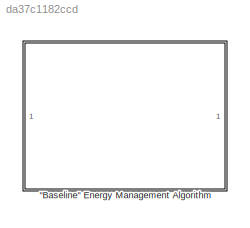
MODEL slx_da37c1182ccd
KIND model
CONFIG AbsTol = auto
CONFIG EnableMultiTasking = off
CONFIG FixedStep = auto
CONFIG MaxStep = auto
CONFIG MinStep = auto
CONFIG RelTol = 1e-3
CONFIG SampleTimeConstraint = Unconstrained
CONFIG SolverName = VariableStepAuto
CONFIG StartTime = 0.0
CONFIG StopTime = 10.0
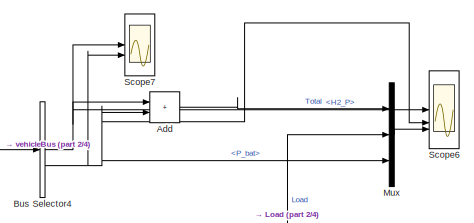
[diagram: "Baseline" Energy Management Algorithm - part 1/4, top left region]
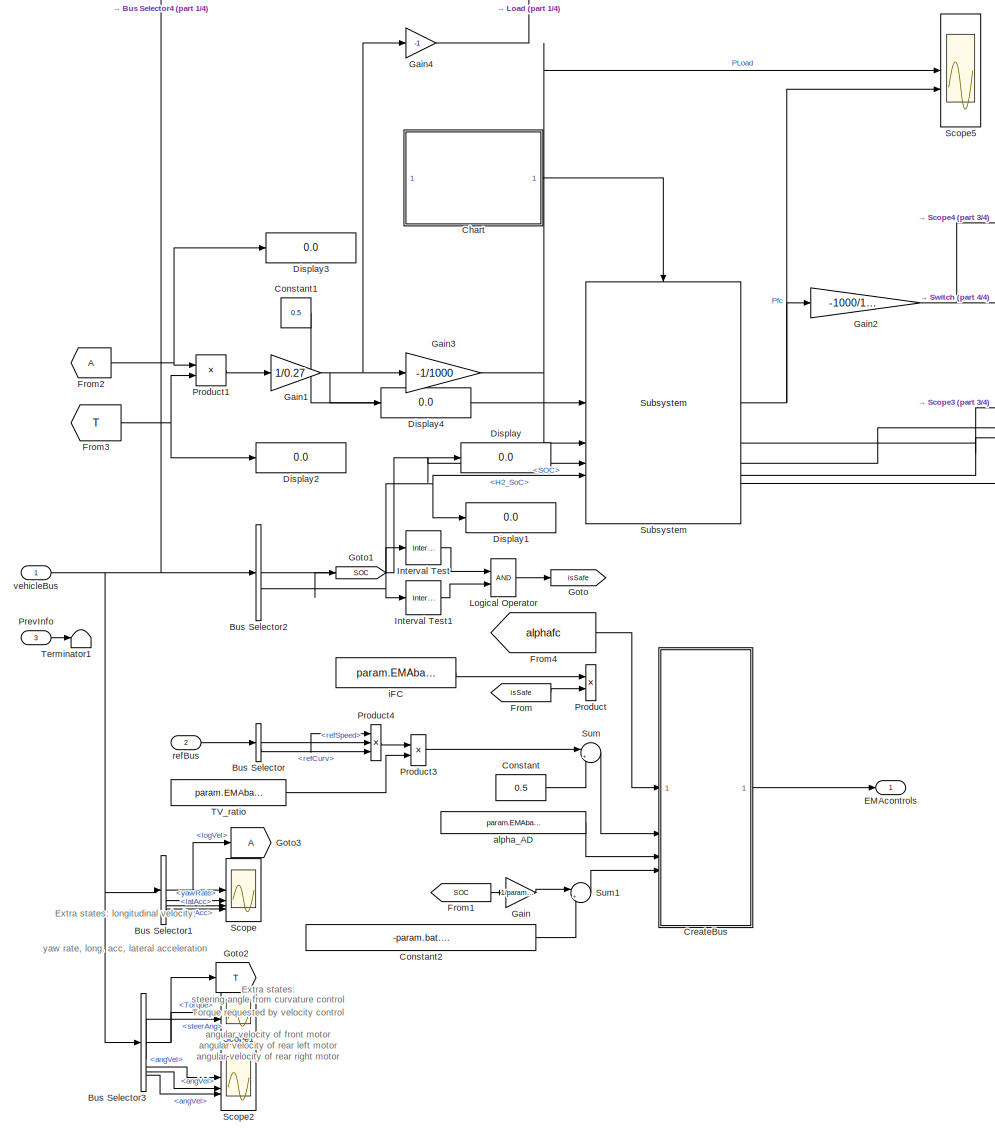
[diagram: "Baseline" Energy Management Algorithm - part 2/4, left side, full height]
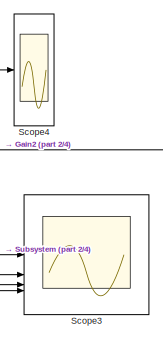
[diagram: "Baseline" Energy Management Algorithm - part 3/4, middle right region]
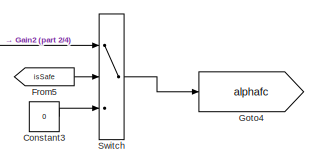
[diagram: "Baseline" Energy Management Algorithm - part 4/4, middle right region]
BLOCK [SubSystem] "Baseline" Energy Management Algorithm
BLOCK [Sum] "Baseline" Energy Management Algorithm/Add
  IconShape = rectangular
BLOCK [BusSelector] "Baseline" Energy Management Algorithm/Bus Selector
  OutputSignals = refSpeed,refCurv
BLOCK [BusSelector] "Baseline" Energy Management Algorithm/Bus Selector1
  OutputSignals = chassisBus.logVel,chassisBus.yawRate,chassisBus.logAcc,chassisBus.latAcc
BLOCK [BusSelector] "Baseline" Energy Management Algorithm/Bus Selector2
  OutputSignals = batteryBus.SOC,rexBus.H2_SoC
BLOCK [BusSelector] "Baseline" Energy Management Algorithm/Bus Selector3
  OutputSignals = chassisControlBus.Torque,chassisControlBus.steerAng,electricMotorBusFM.angVel,electricMotorBusRL.angVel,electricMotorBusRR.angVel
BLOCK [BusSelector] "Baseline" Energy Management Algorithm/Bus Selector4
  OutputSignals = rexBus.H2_P,batteryBus.P_bat
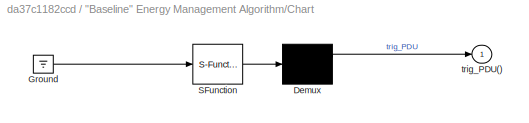
BLOCK [SubSystem] "Baseline" Energy Management Algorithm/Chart
  ErrorFcn = Stateflow.Translate.translate
  PermitHierarchicalResolution = ExplicitOnly
  SFBlockType = Chart
  SystemSampleTime = 0.01
  TreatAsAtomicUnit = on
BLOCK [Demux] "Baseline" Energy Management Algorithm/Chart/ Demux 
  Outputs = 1
BLOCK [Ground] "Baseline" Energy Management Algorithm/Chart/ Ground 
BLOCK [S-Function] "Baseline" Energy Management Algorithm/Chart/ SFunction 
  EnableBusSupport = on
  FunctionName = sf_sfun
  PortCounts = [1 1]
  SFcnIsStateOwnerBlock = off
  SFunctionDeploymentMode = off
  Tag = Stateflow S-Function 3
BLOCK [Outport] "Baseline" Energy Management Algorithm/Chart/trig_PDU()
BLOCK [Constant] "Baseline" Energy Management Algorithm/Constant
  Value = 0.5
BLOCK [Constant] "Baseline" Energy Management Algorithm/Constant1
  Value = 0.5
BLOCK [Constant] "Baseline" Energy Management Algorithm/Constant2
  Value = -param.bat.SOCmin/param.bat.SOC_delta  +1
BLOCK [Constant] "Baseline" Energy Management Algorithm/Constant3
  Value = 0
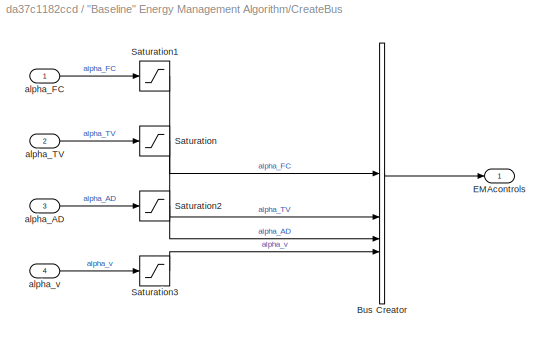
BLOCK [SubSystem] "Baseline" Energy Management Algorithm/CreateBus
BLOCK [BusCreator] "Baseline" Energy Management Algorithm/CreateBus/Bus Creator
  DisplayOption = bar
  InheritFromInputs = on
  Inputs = 4
BLOCK [Outport] "Baseline" Energy Management Algorithm/CreateBus/EMAcontrols
BLOCK [Saturate] "Baseline" Energy Management Algorithm/CreateBus/Saturation
  LowerLimit = 0
  UpperLimit = 1
BLOCK [Saturate] "Baseline" Energy Management Algorithm/CreateBus/Saturation1
  LowerLimit = 0
  UpperLimit = 1
BLOCK [Saturate] "Baseline" Energy Management Algorithm/CreateBus/Saturation2
  LowerLimit = 0
  UpperLimit = 1
BLOCK [Saturate] "Baseline" Energy Management Algorithm/CreateBus/Saturation3
  LowerLimit = 0
  UpperLimit = 1
BLOCK [Inport] "Baseline" Energy Management Algorithm/CreateBus/alpha_AD
  Port = 3
BLOCK [Inport] "Baseline" Energy Management Algorithm/CreateBus/alpha_FC
BLOCK [Inport] "Baseline" Energy Management Algorithm/CreateBus/alpha_TV
  Port = 2
BLOCK [Inport] "Baseline" Energy Management Algorithm/CreateBus/alpha_v
  Port = 4
BLOCK [Display] "Baseline" Energy Management Algorithm/Display
  Decimation = 1
BLOCK [Display] "Baseline" Energy Management Algorithm/Display1
  Decimation = 1
BLOCK [Display] "Baseline" Energy Management Algorithm/Display2
  Decimation = 1
BLOCK [Display] "Baseline" Energy Management Algorithm/Display3
  Decimation = 1
BLOCK [Display] "Baseline" Energy Management Algorithm/Display4
  Decimation = 1
BLOCK [Outport] "Baseline" Energy Management Algorithm/EMAcontrols
BLOCK [From] "Baseline" Energy Management Algorithm/From
  GotoTag = isSafe
BLOCK [From] "Baseline" Energy Management Algorithm/From1
  GotoTag = SOC
BLOCK [From] "Baseline" Energy Management Algorithm/From2
BLOCK [From] "Baseline" Energy Management Algorithm/From3
  GotoTag = T
BLOCK [From] "Baseline" Energy Management Algorithm/From4
  GotoTag = alphafc
BLOCK [From] "Baseline" Energy Management Algorithm/From5
  GotoTag = isSafe
BLOCK [Gain] "Baseline" Energy Management Algorithm/Gain
  Gain = 1/param.bat.SOC_delta
BLOCK [Gain] "Baseline" Energy Management Algorithm/Gain1
  Gain = 1/0.27
BLOCK [Gain] "Baseline" Energy Management Algorithm/Gain2
  Gain = -1000/10000
BLOCK [Gain] "Baseline" Energy Management Algorithm/Gain3
  Gain = -1/1000
BLOCK [Gain] "Baseline" Energy Management Algorithm/Gain4
  Gain = -1
BLOCK [Goto] "Baseline" Energy Management Algorithm/Goto
  GotoTag = isSafe
BLOCK [Goto] "Baseline" Energy Management Algorithm/Goto1
  GotoTag = SOC
BLOCK [Goto] "Baseline" Energy Management Algorithm/Goto2
  GotoTag = T
BLOCK [Goto] "Baseline" Energy Management Algorithm/Goto3
BLOCK [Goto] "Baseline" Energy Management Algorithm/Goto4
  GotoTag = alphafc
BLOCK [Reference] "Baseline" Energy Management Algorithm/Interval Test  REF=simulink/Logic and Bit
Operations/Interval Test
  SourceBlock = simulink/Logic and Bit\nOperations/Interval Test
  SourceType = Interval Test
BLOCK [Reference] "Baseline" Energy Management Algorithm/Interval Test1  REF=simulink/Logic and Bit
Operations/Interval Test
  SourceBlock = simulink/Logic and Bit\nOperations/Interval Test
  SourceType = Interval Test
BLOCK [Logic] "Baseline" Energy Management Algorithm/Logical Operator
  AllPortsSameDT = off
  OutDataTypeStr = boolean
BLOCK [Mux] "Baseline" Energy Management Algorithm/Mux
  DisplayOption = bar
  Inputs = 3
BLOCK [Inport] "Baseline" Energy Management Algorithm/PrevInfo
  Port = 3
BLOCK [Product] "Baseline" Energy Management Algorithm/Product
BLOCK [Product] "Baseline" Energy Management Algorithm/Product1
BLOCK [Product] "Baseline" Energy Management Algorithm/Product3
BLOCK [Product] "Baseline" Energy Management Algorithm/Product4
  Inputs = 3
BLOCK [Scope] "Baseline" Energy Management Algorithm/Scope
  Floating = off
  NumInputPorts = 4
  ScopeSpecificationString = Simulink.scopes.TimeScopeBlockCfg('CurrentConfiguration', extmgr.ConfigurationSet(extmgr.Configuration('Core','General UI',true),extmgr.Configuration('Core','Source UI',true),extmgr.Configuration('Sources','WiredSimulink',true,'DataLoggingVariableName','ScopeData2'),extmgr.Configuration('Visuals','Time Domain',true,'SerializedDisplays',{struct('MinYLimReal','-1.42984','MaxYLimReal','12.86852','YLa...<+3373ch>
BLOCK [Scope] "Baseline" Energy Management Algorithm/Scope1
  Floating = off
  NumInputPorts = 2
  ScopeSpecificationString = Simulink.scopes.TimeScopeBlockCfg('CurrentConfiguration', extmgr.ConfigurationSet(extmgr.Configuration('Core','General UI',true),extmgr.Configuration('Core','Source UI',true),extmgr.Configuration('Sources','WiredSimulink',true,'DataLoggingVariableName','ScopeData3'),extmgr.Configuration('Visuals','Time Domain',true,'SerializedDisplays',{struct('MinYLimReal','-800.00000','MaxYLimReal','800.00000','...<+2015ch>
BLOCK [Scope] "Baseline" Energy Management Algorithm/Scope2
  Floating = off
  NumInputPorts = 3
  ScopeSpecificationString = Simulink.scopes.TimeScopeBlockCfg('CurrentConfiguration', extmgr.ConfigurationSet(extmgr.Configuration('Core','General UI',true),extmgr.Configuration('Core','Source UI',true),extmgr.Configuration('Sources','WiredSimulink',true,'DataLoggingVariableName','ScopeData4'),extmgr.Configuration('Visuals','Time Domain',true,'SerializedDisplays',{struct('MinYLimReal','-5.33752','MaxYLimReal','48.03769','YLa...<+2710ch>
BLOCK [Scope] "Baseline" Energy Management Algorithm/Scope3
  Floating = off
  NumInputPorts = 4
  ScopeSpecificationString = Simulink.scopes.TimeScopeBlockCfg('CurrentConfiguration', extmgr.ConfigurationSet(extmgr.Configuration('Core','General UI',true),extmgr.Configuration('Core','Source UI',true),extmgr.Configuration('Sources','WiredSimulink',true,'DataLoggingVariableName','ScopeData1'),extmgr.Configuration('Visuals','Time Domain',true,'SerializedDisplays',{struct('MinYLimReal','-29.3675','MaxYLimReal','23.75659','YLa...<+3609ch>
BLOCK [Scope] "Baseline" Energy Management Algorithm/Scope4
  Floating = off
  NumInputPorts = 1
  ScopeSpecificationString = Simulink.scopes.TimeScopeBlockCfg('CurrentConfiguration', extmgr.ConfigurationSet(extmgr.Configuration('Core','General UI',true),extmgr.Configuration('Core','Source UI',true),extmgr.Configuration('Sources','WiredSimulink',true,'DataLoggingVariableName','ScopeData2'),extmgr.Configuration('Visuals','Time Domain',true,'SerializedDisplays',{struct('MinYLimReal','-0.09913','MaxYLimReal','1.09368','YLab...<+1383ch>
BLOCK [Scope] "Baseline" Energy Management Algorithm/Scope5
  Floating = off
  NumInputPorts = 2
  ScopeSpecificationString = Simulink.scopes.TimeScopeBlockCfg('CurrentConfiguration', extmgr.ConfigurationSet(extmgr.Configuration('Core','General UI',true),extmgr.Configuration('Core','Source UI',true),extmgr.Configuration('Sources','WiredSimulink',true,'DataLoggingVariableName','ScopeData3'),extmgr.Configuration('Visuals','Time Domain',true,'SerializedDisplays',{struct('MinYLimReal','-57.3921','MaxYLimReal','46.20803','YLa...<+1447ch>
BLOCK [Scope] "Baseline" Energy Management Algorithm/Scope6
  Floating = off
  NumInputPorts = 3
  ScopeSpecificationString = Simulink.scopes.TimeScopeBlockCfg('CurrentConfiguration', extmgr.ConfigurationSet(extmgr.Configuration('Core','General UI',true),extmgr.Configuration('Core','Source UI',true),extmgr.Configuration('Sources','WiredSimulink',true,'DataLoggingVariableName','ScopeData4'),extmgr.Configuration('Visuals','Time Domain',true,'SerializedDisplays',{struct('MinYLimReal','-1600.9352','MaxYLimReal','14408.41676'...<+2869ch>
BLOCK [Scope] "Baseline" Energy Management Algorithm/Scope7
  Floating = off
  NumInputPorts = 2
  ScopeSpecificationString = Simulink.scopes.TimeScopeBlockCfg('CurrentConfiguration', extmgr.ConfigurationSet(extmgr.Configuration('Core','General UI',true),extmgr.Configuration('Core','Source UI',true),extmgr.Configuration('Sources','WiredSimulink',true,'DataLoggingVariableName','ScopeData5'),extmgr.Configuration('Visuals','Time Domain',true,'SerializedDisplays',{struct('MinYLimReal','-59533.49703','MaxYLimReal','34649.1021...<+1437ch>
BLOCK [Reference] "Baseline" Energy Management Algorithm/Subsystem  REF=SOCMPC/Subsystem
  SourceBlock = SOCMPC/Subsystem
  SourceType = SubSystem
BLOCK [Sum] "Baseline" Energy Management Algorithm/Sum
  Inputs = |++
BLOCK [Sum] "Baseline" Energy Management Algorithm/Sum1
  Inputs = |++
BLOCK [Switch] "Baseline" Energy Management Algorithm/Switch
  Criteria = u2 ~= 0
  InputSameDT = off
  SaturateOnIntegerOverflow = off
BLOCK [Constant] "Baseline" Energy Management Algorithm/TV_ratio
  Value = param.EMAbaseline.ktv
BLOCK [Terminator] "Baseline" Energy Management Algorithm/Terminator1
BLOCK [Constant] "Baseline" Energy Management Algorithm/alpha_AD
  Value = param.EMAbaseline.a_ad
BLOCK [Constant] "Baseline" Energy Management Algorithm/iFC
  Value = param.EMAbaseline.kfc
BLOCK [Inport] "Baseline" Energy Management Algorithm/refBus
  Port = 2
BLOCK [Inport] "Baseline" Energy Management Algorithm/vehicleBus
ANNOTATION "Baseline" Energy Management Algorithm: Extra states: Torque requested by velocity control steering angle from curvature control angular velocity of front motor angular velocity of rear left motor angular velocity of rear right motor
ANNOTATION "Baseline" Energy Management Algorithm: Extra states: longitudinal velocity; yaw rate, long. acc, lateral acceleration
LINE "Baseline" Energy Management Algorithm/Add:1 -> "Baseline" Energy Management Algorithm/Mux:1
NET "Baseline" Energy Management Algorithm/Bus Selector1:1 -> "Baseline" Energy Management Algorithm/Goto3:1, "Baseline" Energy Management Algorithm/Scope:1
LINE "Baseline" Energy Management Algorithm/Bus Selector1:2 -> "Baseline" Energy Management Algorithm/Scope:2
LINE "Baseline" Energy Management Algorithm/Bus Selector1:3 -> "Baseline" Energy Management Algorithm/Scope:3
LINE "Baseline" Energy Management Algorithm/Bus Selector1:4 -> "Baseline" Energy Management Algorithm/Scope:4
NET "Baseline" Energy Management Algorithm/Bus Selector2:1 -> "Baseline" Energy Management Algorithm/Display:1, "Baseline" Energy Management Algorithm/Goto1:1, "Baseline" Energy Management Algorithm/Interval Test:1, "Baseline" Energy Management Algorithm/Subsystem:3
NET "Baseline" Energy Management Algorithm/Bus Selector2:2 -> "Baseline" Energy Management Algorithm/Display1:1, "Baseline" Energy Management Algorithm/Interval Test1:1, "Baseline" Energy Management Algorithm/Subsystem:4
NET "Baseline" Energy Management Algorithm/Bus Selector3:1 -> "Baseline" Energy Management Algorithm/Goto2:1, "Baseline" Energy Management Algorithm/Scope1:1
LINE "Baseline" Energy Management Algorithm/Bus Selector3:2 -> "Baseline" Energy Management Algorithm/Scope1:2
LINE "Baseline" Energy Management Algorithm/Bus Selector3:3 -> "Baseline" Energy Management Algorithm/Scope2:1
LINE "Baseline" Energy Management Algorithm/Bus Selector3:4 -> "Baseline" Energy Management Algorithm/Scope2:2
LINE "Baseline" Energy Management Algorithm/Bus Selector3:5 -> "Baseline" Energy Management Algorithm/Scope2:3
NET "Baseline" Energy Management Algorithm/Bus Selector4:1 -> "Baseline" Energy Management Algorithm/Add:1, "Baseline" Energy Management Algorithm/Scope6:1, "Baseline" Energy Management Algorithm/Scope7:1
NET "Baseline" Energy Management Algorithm/Bus Selector4:2 -> "Baseline" Energy Management Algorithm/Add:2, "Baseline" Energy Management Algorithm/Mux:3, "Baseline" Energy Management Algorithm/Scope6:2, "Baseline" Energy Management Algorithm/Scope7:2
NET "Baseline" Energy Management Algorithm/Bus Selector:1 -> "Baseline" Energy Management Algorithm/Product4:1, "Baseline" Energy Management Algorithm/Product4:2
LINE "Baseline" Energy Management Algorithm/Bus Selector:2 -> "Baseline" Energy Management Algorithm/Product4:3
LINE "Baseline" Energy Management Algorithm/Chart:1 -> "Baseline" Energy Management Algorithm/Subsystem:trigger
LINE "Baseline" Energy Management Algorithm/Constant1:1 -> "Baseline" Energy Management Algorithm/Subsystem:1
LINE "Baseline" Energy Management Algorithm/Constant2:1 -> "Baseline" Energy Management Algorithm/Sum1:2
LINE "Baseline" Energy Management Algorithm/Constant3:1 -> "Baseline" Energy Management Algorithm/Switch:3
LINE "Baseline" Energy Management Algorithm/Constant:1 -> "Baseline" Energy Management Algorithm/Sum:2
LINE "Baseline" Energy Management Algorithm/CreateBus/Bus Creator:1 -> "Baseline" Energy Management Algorithm/CreateBus/EMAcontrols:1
LINE "Baseline" Energy Management Algorithm/CreateBus/Saturation1:1 -> "Baseline" Energy Management Algorithm/CreateBus/Bus Creator:1
LINE "Baseline" Energy Management Algorithm/CreateBus/Saturation2:1 -> "Baseline" Energy Management Algorithm/CreateBus/Bus Creator:3
LINE "Baseline" Energy Management Algorithm/CreateBus/Saturation3:1 -> "Baseline" Energy Management Algorithm/CreateBus/Bus Creator:4
LINE "Baseline" Energy Management Algorithm/CreateBus/Saturation:1 -> "Baseline" Energy Management Algorithm/CreateBus/Bus Creator:2
LINE "Baseline" Energy Management Algorithm/CreateBus/alpha_AD:1 -> "Baseline" Energy Management Algorithm/CreateBus/Saturation2:1
LINE "Baseline" Energy Management Algorithm/CreateBus/alpha_FC:1 -> "Baseline" Energy Management Algorithm/CreateBus/Saturation1:1
LINE "Baseline" Energy Management Algorithm/CreateBus/alpha_TV:1 -> "Baseline" Energy Management Algorithm/CreateBus/Saturation:1
LINE "Baseline" Energy Management Algorithm/CreateBus/alpha_v:1 -> "Baseline" Energy Management Algorithm/CreateBus/Saturation3:1
LINE "Baseline" Energy Management Algorithm/CreateBus:1 -> "Baseline" Energy Management Algorithm/EMAcontrols:1
LINE "Baseline" Energy Management Algorithm/From1:1 -> "Baseline" Energy Management Algorithm/Gain:1
NET "Baseline" Energy Management Algorithm/From2:1 -> "Baseline" Energy Management Algorithm/Display3:1, "Baseline" Energy Management Algorithm/Product1:1
NET "Baseline" Energy Management Algorithm/From3:1 -> "Baseline" Energy Management Algorithm/Display2:1, "Baseline" Energy Management Algorithm/Product1:2
LINE "Baseline" Energy Management Algorithm/From4:1 -> "Baseline" Energy Management Algorithm/CreateBus:1
LINE "Baseline" Energy Management Algorithm/From5:1 -> "Baseline" Energy Management Algorithm/Switch:2
LINE "Baseline" Energy Management Algorithm/From:1 -> "Baseline" Energy Management Algorithm/Product:2
NET "Baseline" Energy Management Algorithm/Gain1:1 -> "Baseline" Energy Management Algorithm/Display4:1, "Baseline" Energy Management Algorithm/Gain3:1, "Baseline" Energy Management Algorithm/Gain4:1
NET "Baseline" Energy Management Algorithm/Gain2:1 -> "Baseline" Energy Management Algorithm/Scope4:1, "Baseline" Energy Management Algorithm/Switch:1
NET "Baseline" Energy Management Algorithm/Gain3:1 -> "Baseline" Energy Management Algorithm/Scope5:1, "Baseline" Energy Management Algorithm/Subsystem:2
LINE "Baseline" Energy Management Algorithm/Gain4:1 -> "Baseline" Energy Management Algorithm/Mux:2
LINE "Baseline" Energy Management Algorithm/Gain:1 -> "Baseline" Energy Management Algorithm/Sum1:1
LINE "Baseline" Energy Management Algorithm/Interval Test1:1 -> "Baseline" Energy Management Algorithm/Logical Operator:2
LINE "Baseline" Energy Management Algorithm/Interval Test:1 -> "Baseline" Energy Management Algorithm/Logical Operator:1
LINE "Baseline" Energy Management Algorithm/Logical Operator:1 -> "Baseline" Energy Management Algorithm/Goto:1
LINE "Baseline" Energy Management Algorithm/Mux:1 -> "Baseline" Energy Management Algorithm/Scope6:3
LINE "Baseline" Energy Management Algorithm/PrevInfo:1 -> "Baseline" Energy Management Algorithm/Terminator1:1
LINE "Baseline" Energy Management Algorithm/Product1:1 -> "Baseline" Energy Management Algorithm/Gain1:1
LINE "Baseline" Energy Management Algorithm/Product3:1 -> "Baseline" Energy Management Algorithm/Sum:1
LINE "Baseline" Energy Management Algorithm/Product4:1 -> "Baseline" Energy Management Algorithm/Product3:1
NET "Baseline" Energy Management Algorithm/Subsystem:1 -> "Baseline" Energy Management Algorithm/Gain2:1, "Baseline" Energy Management Algorithm/Scope5:2
LINE "Baseline" Energy Management Algorithm/Subsystem:2 -> "Baseline" Energy Management Algorithm/Scope3:1
LINE "Baseline" Energy Management Algorithm/Subsystem:3 -> "Baseline" Energy Management Algorithm/Scope3:2
LINE "Baseline" Energy Management Algorithm/Subsystem:4 -> "Baseline" Energy Management Algorithm/Scope3:3
LINE "Baseline" Energy Management Algorithm/Subsystem:5 -> "Baseline" Energy Management Algorithm/Scope3:4
LINE "Baseline" Energy Management Algorithm/Sum1:1 -> "Baseline" Energy Management Algorithm/CreateBus:4
LINE "Baseline" Energy Management Algorithm/Sum:1 -> "Baseline" Energy Management Algorithm/CreateBus:2
LINE "Baseline" Energy Management Algorithm/Switch:1 -> "Baseline" Energy Management Algorithm/Goto4:1
LINE "Baseline" Energy Management Algorithm/TV_ratio:1 -> "Baseline" Energy Management Algorithm/Product3:2
LINE "Baseline" Energy Management Algorithm/alpha_AD:1 -> "Baseline" Energy Management Algorithm/CreateBus:3
LINE "Baseline" Energy Management Algorithm/iFC:1 -> "Baseline" Energy Management Algorithm/Product:1
LINE "Baseline" Energy Management Algorithm/refBus:1 -> "Baseline" Energy Management Algorithm/Bus Selector:1
NET "Baseline" Energy Management Algorithm/vehicleBus:1 -> "Baseline" Energy Management Algorithm/Bus Selector1:1, "Baseline" Energy Management Algorithm/Bus Selector2:1, "Baseline" Energy Management Algorithm/Bus Selector3:1, "Baseline" Energy Management Algorithm/Bus Selector4:1
note: NET lines group one-source signal fan-out (src -> all destinations, sorted); 1:1 wires keep LINE
CHART "Baseline" Energy Management Algorithm/Chart states=0 transitions=2
CHART  states=0 transitions=0
